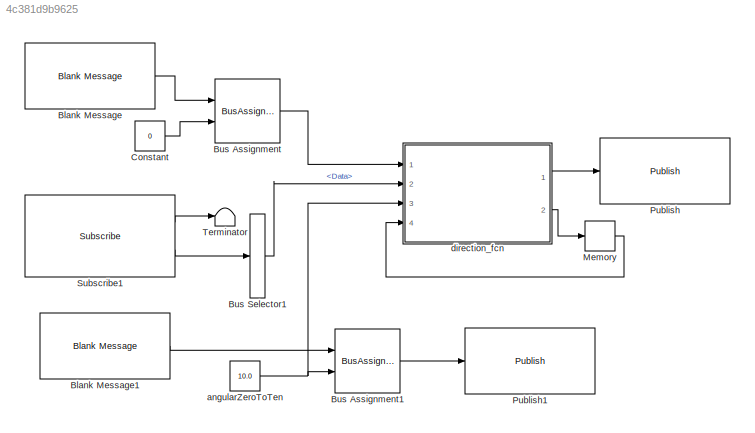
MODEL slx_4c381d9b9625
KIND model
CONFIG AbsTol = auto
CONFIG EnableMultiTasking = off
CONFIG FixedStep = auto
CONFIG MaxStep = auto
CONFIG MinStep = auto
CONFIG RelTol = 1e-3
CONFIG SampleTimeConstraint = Unconstrained
CONFIG Solver = FixedStepAuto
CONFIG SolverName = FixedStepAuto
CONFIG StartTime = 0.0
CONFIG StopTime = inf
BLOCK [Reference] Blank Message  REF=robotlib/Blank Message
  Ports = [0, 1]
  SourceBlock = robotlib/Blank Message
  SourceLibraryInfo = This block requires Robotics System Toolbox
  SourceType = ROS Blank Message
BLOCK [Reference] Blank Message1  REF=robotlib/Blank Message
  Ports = [0, 1]
  SourceBlock = robotlib/Blank Message
  SourceLibraryInfo = This block requires Robotics System Toolbox
  SourceType = ROS Blank Message
BLOCK [BusAssignment] Bus Assignment
  AssignedSignals = Data
  Ports = [2, 1]
BLOCK [BusAssignment] Bus Assignment1
  AssignedSignals = Data
  Ports = [2, 1]
BLOCK [BusSelector] Bus Selector1
  OutputSignals = Data
  Ports = [1, 1]
BLOCK [Constant] Constant
  Value = 0
BLOCK [Memory] Memory
BLOCK [Reference] Publish  REF=robotlib/Publish
  Ports = [1]
  SourceBlock = robotlib/Publish
  SourceLibraryInfo = This block requires Robotics System Toolbox
  SourceType = ROS Publish
BLOCK [Reference] Publish1  REF=robotlib/Publish
  Ports = [1]
  SourceBlock = robotlib/Publish
  SourceLibraryInfo = This block requires Robotics System Toolbox
  SourceType = ROS Publish
BLOCK [Reference] Subscribe1  REF=robotlib/Subscribe
  Ports = [0, 2]
  SourceBlock = robotlib/Subscribe
  SourceLibraryInfo = This block requires Robotics System Toolbox
  SourceType = ROS Subscribe
BLOCK [Terminator] Terminator
BLOCK [Constant] angularZeroToTen
  OutDataTypeStr = double
  Value = 10.0
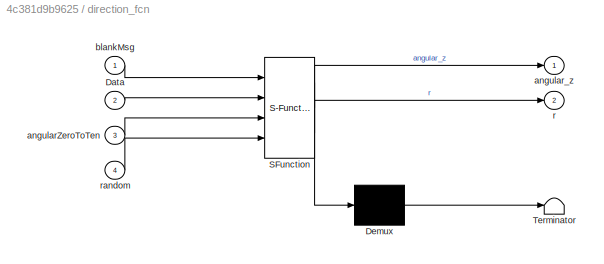
BLOCK [SubSystem] direction_fcn
  ErrorFcn = Stateflow.Translate.translate
  PermitHierarchicalResolution = ExplicitOnly
  Ports = [4, 2]
  RequestExecContextInheritance = off
  SFBlockType = MATLAB Function
  TreatAsAtomicUnit = on
  Variant = off
BLOCK [Demux] direction_fcn/ Demux 
  Outputs = 1
  Ports = [1, 1]
BLOCK [S-Function] direction_fcn/ SFunction 
  EnableBusSupport = on
  FunctionName = sf_sfun
  PortCounts = [4 3]
  Ports = [4, 3]
  SFcnIsStateOwnerBlock = off
  SFunctionDeploymentMode = off
  Tag = Stateflow S-Function directionController 2
BLOCK [Terminator] direction_fcn/ Terminator 
BLOCK [Inport] direction_fcn/Data
  IconDisplay = Port number
  Port = 2
BLOCK [Inport] direction_fcn/angularZeroToTen
  IconDisplay = Port number
  Port = 3
BLOCK [Outport] direction_fcn/angular_z
  IconDisplay = Port number
BLOCK [Inport] direction_fcn/blankMsg
  IconDisplay = Port number
BLOCK [Outport] direction_fcn/r
  IconDisplay = Port number
  Port = 2
BLOCK [Inport] direction_fcn/random
  IconDisplay = Port number
  Port = 4
LINE Blank Message1:1 -> Bus Assignment1:1
LINE Blank Message:1 -> Bus Assignment:1
LINE Bus Assignment1:1 -> Publish1:1
LINE Bus Assignment:1 -> direction_fcn:1
LINE Bus Selector1:1 -> direction_fcn:2
LINE Constant:1 -> Bus Assignment:2
LINE Memory:1 -> direction_fcn:4
LINE Subscribe1:1 -> Terminator:1
LINE Subscribe1:2 -> Bus Selector1:1
NET angularZeroToTen:1 -> Bus Assignment1:2, direction_fcn:3
LINE direction_fcn:1 -> Publish:1
LINE direction_fcn:2 -> Memory:1
note: NET lines group one-source signal fan-out (src -> all destinations, sorted); 1:1 wires keep LINE
CHART direction_fcn states=1 transitions=1
  STATE_LABEL 'eML_blk_kernel()'
  STATE_LABEL 'SCRIPT:\nfunction [angular_z, r] = fcn(blankMsg, Data, angularZeroToTen, random)\n\nangular_z = blankMsg;\n\nif(Data > 0 && Data < 10)\n    if(random == 0) \n        % Turning left;\n        angular_z.Data = angularZeroToTen;\n        r = random;\n    else\n        % Turning right;\n        angular_z.Data = -angularZeroToTen;\n        r = random;\n    end\nelse\n    angular_z.Data = 0;\n    r = randi([0 1], 1, 1);...<+5ch>'
